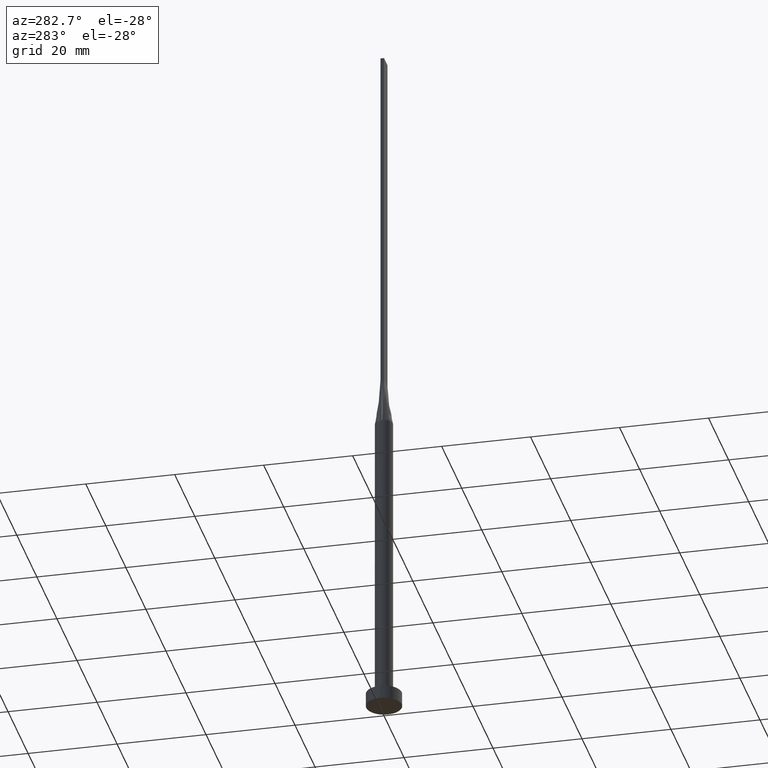
[diagram: clean part render]
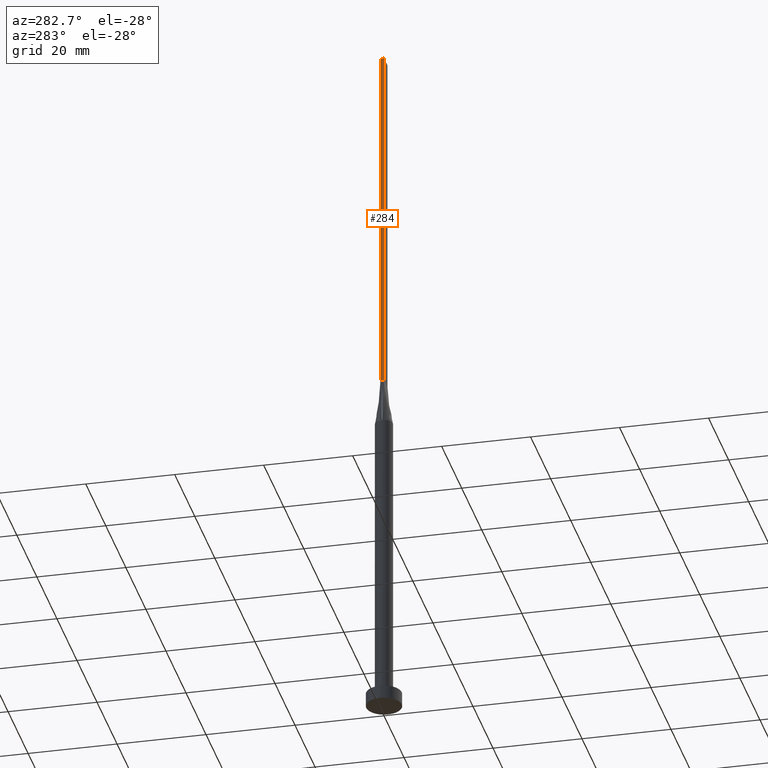
[diagram: same view with one face highlighted and labeled with its STEP entity id]
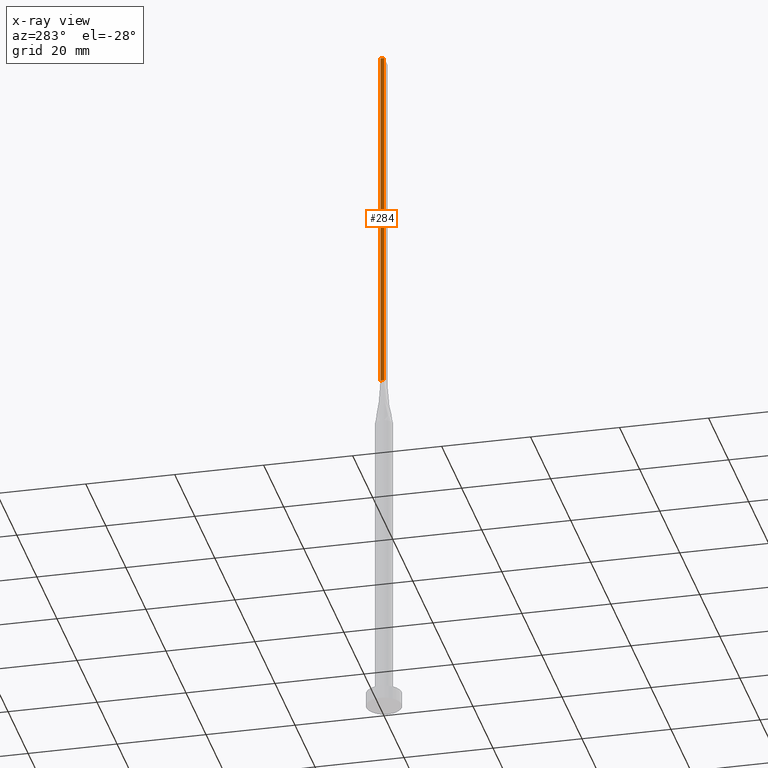
[diagram: x-ray of the same camera — body ghosted, the highlighted face saturated]
A machine part, auxiliary view. The second image highlights one B-rep face of the part: STEP entity #284.
The next image is the same camera in x-ray: the body ghosted, the highlighted face saturated — about 0% of this face is hidden behind the body in this view.
In plain terms, the highlighted planar face has unit normal (1, -0, 0).
Its self-contained STEP definition (entity closure, byte-faithful):
#8 = VECTOR ( 'NONE', #379, 1000.000000000000000 ) ;
#40 = EDGE_CURVE ( 'NONE', #183, #131, #268, .T. ) ;
#47 = CARTESIAN_POINT ( 'NONE',  ( -1.749999999999999778, 0.4000000000000003553, 160.0000000000000000 ) ) ;
#90 = VERTEX_POINT ( 'NONE', #292 ) ;
#92 = ORIENTED_EDGE ( 'NONE', *, *, #114, .T. ) ;
#98 = DIRECTION ( 'NONE',  ( -0.000000000000000000, -0.000000000000000000, -1.000000000000000000 ) ) ;
#114 = EDGE_CURVE ( 'NONE', #321, #90, #404, .T. ) ;
#131 = VERTEX_POINT ( 'NONE', #274 ) ;
#136 = CARTESIAN_POINT ( 'NONE',  ( -1.750000000000000000, -0.3999999999999996891, 160.0000000000000000 ) ) ;
#154 = ORIENTED_EDGE ( 'NONE', *, *, #282, .F. ) ;
#169 = LINE ( 'NONE', #353, #563 ) ;
#177 = PLANE ( 'NONE',  #451 ) ;
#183 = VERTEX_POINT ( 'NONE', #344 ) ;
#205 = VECTOR ( 'NONE', #98, 1000.000000000000000 ) ;
#231 = DIRECTION ( 'NONE',  ( 2.710505431213761085E-16, 1.000000000000000000, 0.000000000000000000 ) ) ;
#232 = LINE ( 'NONE', #47, #237 ) ;
#237 = VECTOR ( 'NONE', #437, 1000.000000000000000 ) ;
#258 = DIRECTION ( 'NONE',  ( -2.710505431213761085E-16, -1.000000000000000000, 0.000000000000000000 ) ) ;
#265 = DIRECTION ( 'NONE',  ( 1.000000000000000000, -2.710505431213761085E-16, 0.000000000000000000 ) ) ;
#268 = LINE ( 'NONE', #136, #8 ) ;
#270 = FACE_OUTER_BOUND ( 'NONE', #405, .T. ) ;
#274 = CARTESIAN_POINT ( 'NONE',  ( -1.750000000000000000, -0.3999999999999996891, 80.00000000000000000 ) ) ;
#282 = EDGE_CURVE ( 'NONE', #321, #183, #232, .T. ) ;
#284 = ADVANCED_FACE ( 'NONE', ( #270 ), #177, .F. ) ;
#285 = ORIENTED_EDGE ( 'NONE', *, *, #455, .T. ) ;
#292 = CARTESIAN_POINT ( 'NONE',  ( -1.749999999999999778, 0.4000000000000003553, 80.00000000000000000 ) ) ;
#321 = VERTEX_POINT ( 'NONE', #533 ) ;
#344 = CARTESIAN_POINT ( 'NONE',  ( -1.750000000000000000, -0.3999999999999996891, 160.0000000000000000 ) ) ;
#353 = CARTESIAN_POINT ( 'NONE',  ( -1.749999999999999778, 0.4000000000000003553, 80.00000000000000000 ) ) ;
#379 = DIRECTION ( 'NONE',  ( -0.000000000000000000, -0.000000000000000000, -1.000000000000000000 ) ) ;
#403 = CARTESIAN_POINT ( 'NONE',  ( -1.749999999999999778, 0.4000000000000003553, 160.0000000000000000 ) ) ;
#404 = LINE ( 'NONE', #494, #205 ) ;
#405 = EDGE_LOOP ( 'NONE', ( #285, #479, #154, #92 ) ) ;
#437 = DIRECTION ( 'NONE',  ( -2.710505431213761085E-16, -1.000000000000000000, 0.000000000000000000 ) ) ;
#451 = AXIS2_PLACEMENT_3D ( 'NONE', #403, #265, #231 ) ;
#455 = EDGE_CURVE ( 'NONE', #90, #131, #169, .T. ) ;
#479 = ORIENTED_EDGE ( 'NONE', *, *, #40, .F. ) ;
#494 = CARTESIAN_POINT ( 'NONE',  ( -1.749999999999999778, 0.4000000000000003553, 160.0000000000000000 ) ) ;
#533 = CARTESIAN_POINT ( 'NONE',  ( -1.749999999999999778, 0.4000000000000003553, 160.0000000000000000 ) ) ;
#563 = VECTOR ( 'NONE', #258, 1000.000000000000000 ) ;